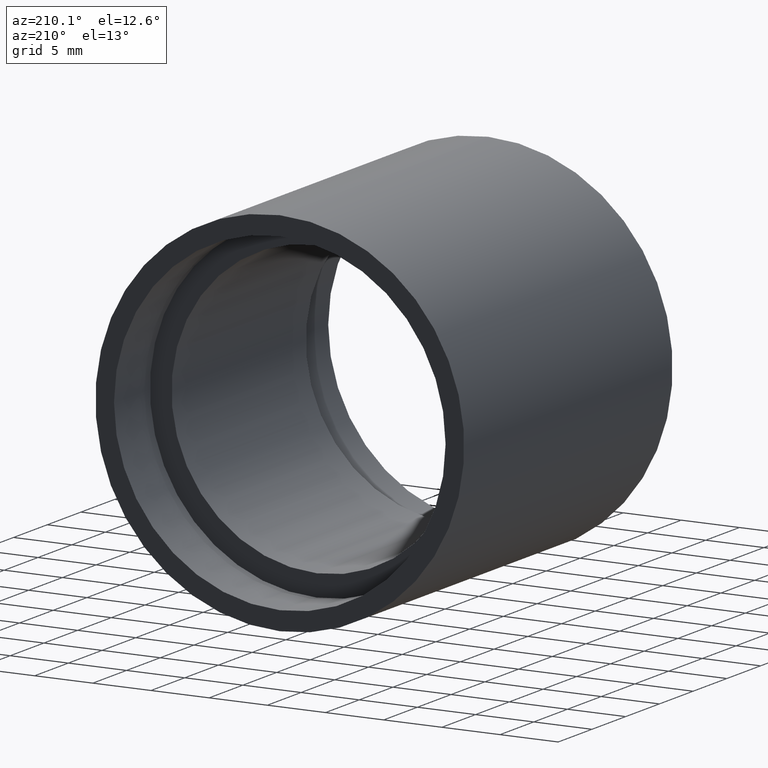
[diagram: clean part render]
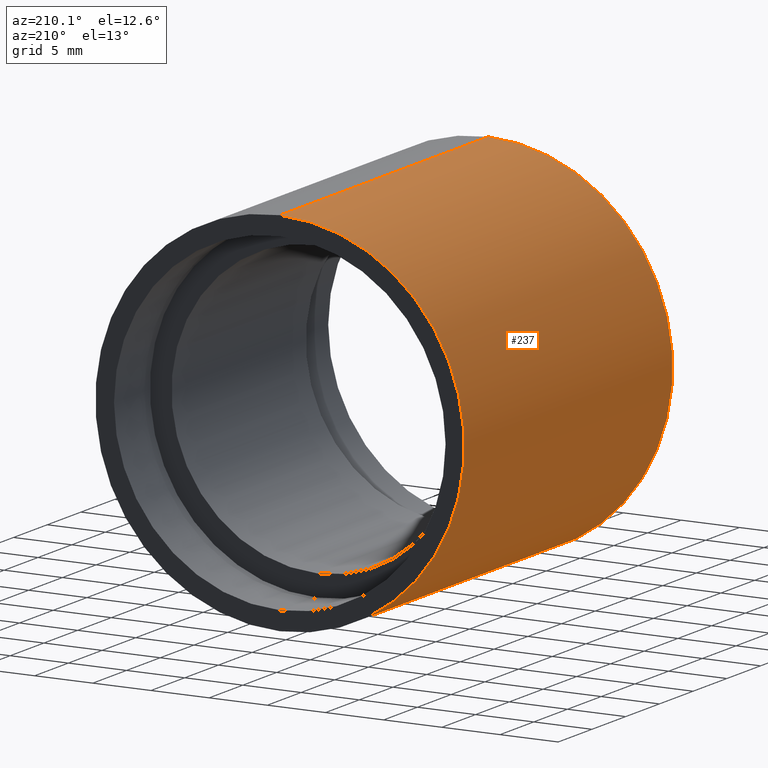
[diagram: same view with one face highlighted and labeled with its STEP entity id]
A machine part, auxiliary view. The second image highlights one B-rep face of the part: STEP entity #237.
In plain terms, the highlighted cylindrical surface (partial cylindrical patch) has radius 15.85 mm, axis along (-0, 1, -0).
Its self-contained STEP definition (entity closure, byte-faithful):
#25 = DIRECTION ( 'NONE',  ( -0.0000000000000000000, 1.000000000000000000, -0.0000000000000000000 ) ) ;
#26 = DIRECTION ( 'NONE',  ( -0.0000000000000000000, 1.000000000000000000, -0.0000000000000000000 ) ) ;
#33 = ORIENTED_EDGE ( 'NONE', *, *, #213, .F. ) ;
#83 = CARTESIAN_POINT ( 'NONE',  ( 1.941065176648557100E-015, 161.3761669434274500, -15.85000000000002100 ) ) ;
#88 = LINE ( 'NONE', #92, #537 ) ;
#92 = CARTESIAN_POINT ( 'NONE',  ( 0.0000000000000000000, 161.3761669434274500, 15.85000000000002100 ) ) ;
#164 = VERTEX_POINT ( 'NONE', #463 ) ;
#170 = DIRECTION ( 'NONE',  ( 0.0000000000000000000, 0.0000000000000000000, 1.000000000000000000 ) ) ;
#175 = CIRCLE ( 'NONE', #357, 15.85000000000002100 ) ;
#189 = ORIENTED_EDGE ( 'NONE', *, *, #251, .F. ) ;
#213 = EDGE_CURVE ( 'NONE', #571, #530, #415, .T. ) ;
#223 = DIRECTION ( 'NONE',  ( 0.0000000000000000000, 0.0000000000000000000, 1.000000000000000000 ) ) ;
#230 = FACE_OUTER_BOUND ( 'NONE', #446, .T. ) ;
#237 = ADVANCED_FACE ( 'NONE', ( #230 ), #494, .T. ) ;
#246 = CARTESIAN_POINT ( 'NONE',  ( 1.941065176648557100E-015, 30.89999999999998400, -15.85000000000002100 ) ) ;
#251 = EDGE_CURVE ( 'NONE', #530, #164, #579, .T. ) ;
#284 = VECTOR ( 'NONE', #26, 1000.000000000000000 ) ;
#286 = AXIS2_PLACEMENT_3D ( 'NONE', #317, #552, #170 ) ;
#317 = CARTESIAN_POINT ( 'NONE',  ( 0.0000000000000000000, 161.3761669434274500, 0.0000000000000000000 ) ) ;
#322 = CARTESIAN_POINT ( 'NONE',  ( 0.0000000000000000000, 30.89999999999998400, 0.0000000000000000000 ) ) ;
#328 = AXIS2_PLACEMENT_3D ( 'NONE', #322, #25, #223 ) ;
#335 = CARTESIAN_POINT ( 'NONE',  ( 0.0000000000000000000, -2.775557561562891400E-014, 15.85000000000002100 ) ) ;
#354 = EDGE_CURVE ( 'NONE', #567, #164, #88, .T. ) ;
#357 = AXIS2_PLACEMENT_3D ( 'NONE', #533, #505, #404 ) ;
#390 = ORIENTED_EDGE ( 'NONE', *, *, #583, .T. ) ;
#404 = DIRECTION ( 'NONE',  ( 0.0000000000000000000, 0.0000000000000000000, 1.000000000000000000 ) ) ;
#415 = LINE ( 'NONE', #83, #284 ) ;
#446 = EDGE_LOOP ( 'NONE', ( #33, #390, #569, #189 ) ) ;
#463 = CARTESIAN_POINT ( 'NONE',  ( 0.0000000000000000000, 30.89999999999998400, 15.85000000000002100 ) ) ;
#475 = DIRECTION ( 'NONE',  ( -0.0000000000000000000, 1.000000000000000000, -0.0000000000000000000 ) ) ;
#494 = CYLINDRICAL_SURFACE ( 'NONE', #286, 15.85000000000002100 ) ;
#505 = DIRECTION ( 'NONE',  ( -0.0000000000000000000, 1.000000000000000000, -0.0000000000000000000 ) ) ;
#530 = VERTEX_POINT ( 'NONE', #246 ) ;
#533 = CARTESIAN_POINT ( 'NONE',  ( 0.0000000000000000000, -2.775557561562891400E-014, 0.0000000000000000000 ) ) ;
#537 = VECTOR ( 'NONE', #475, 1000.000000000000000 ) ;
#552 = DIRECTION ( 'NONE',  ( -0.0000000000000000000, 1.000000000000000000, -0.0000000000000000000 ) ) ;
#564 = CARTESIAN_POINT ( 'NONE',  ( 1.941065176648557100E-015, -2.775557561562891400E-014, -15.85000000000002100 ) ) ;
#567 = VERTEX_POINT ( 'NONE', #335 ) ;
#569 = ORIENTED_EDGE ( 'NONE', *, *, #354, .T. ) ;
#571 = VERTEX_POINT ( 'NONE', #564 ) ;
#579 = CIRCLE ( 'NONE', #328, 15.85000000000002100 ) ;
#583 = EDGE_CURVE ( 'NONE', #571, #567, #175, .T. ) ;